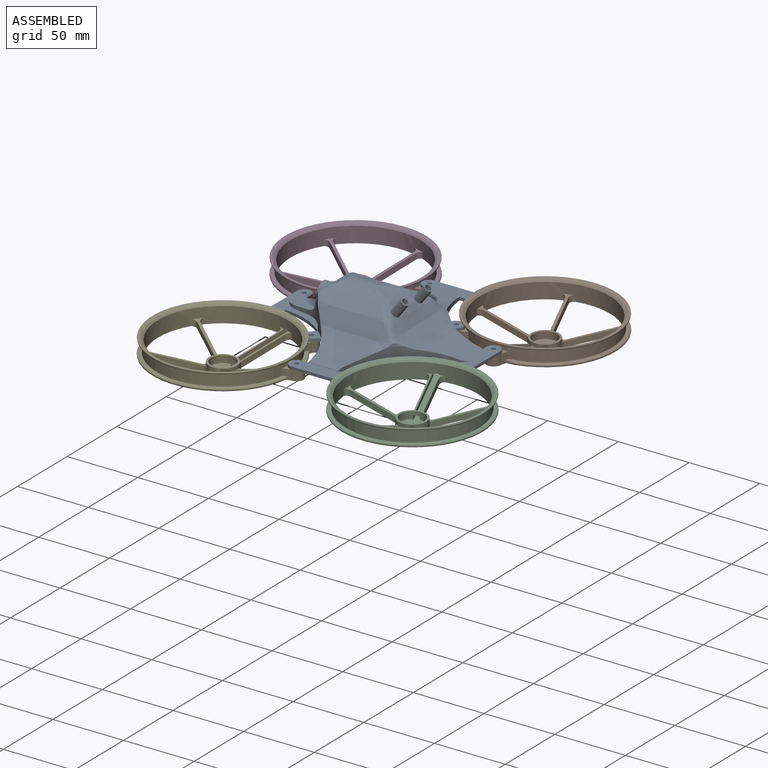
[diagram: assembled view]
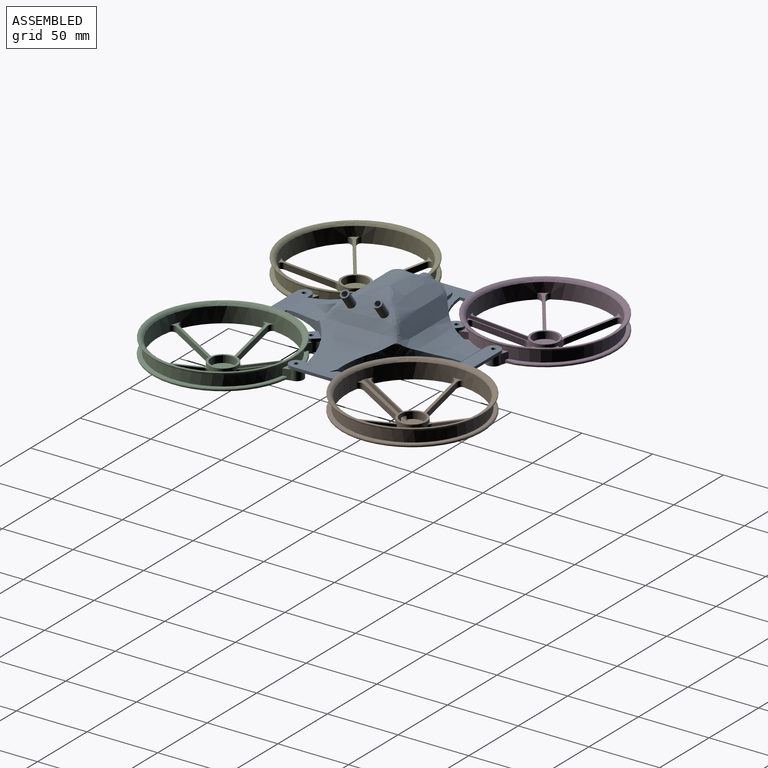
[diagram: assembled view, second angle]
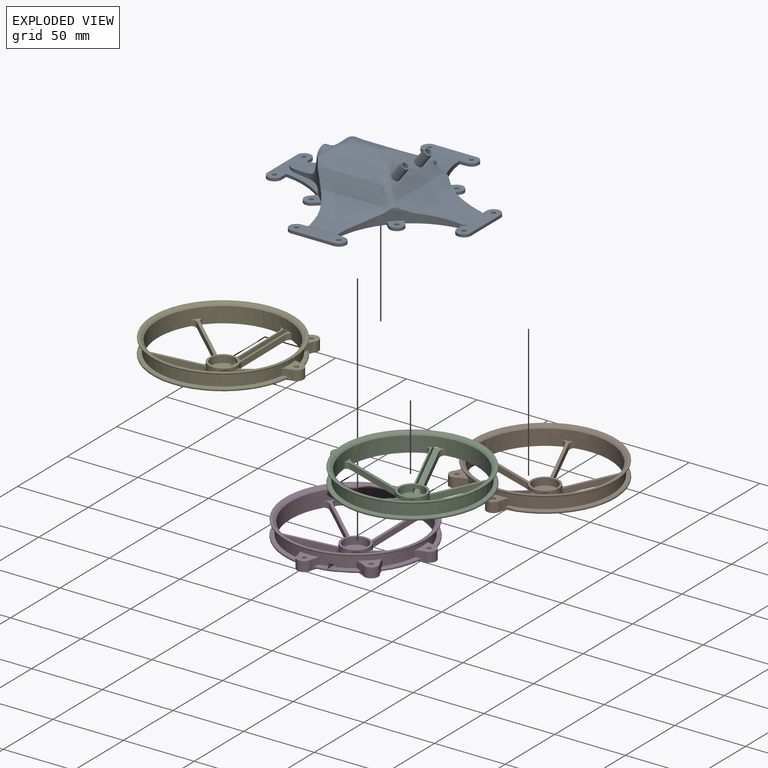
[diagram: exploded view]
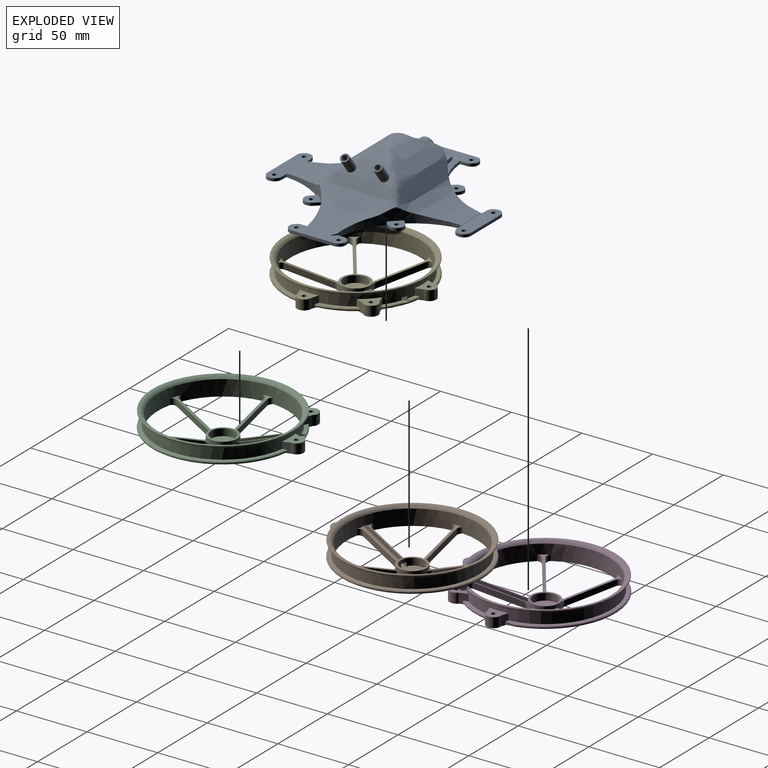
[diagram: exploded view, second angle]
ASSEMBLY  parts=5 mates=4
PART A: 174 faces, bbox 147.6x147.5x36.3 mm
  f0: extruded ~68.26x51.23mm, area 2194.1mm2, adj f1,f166,f167,f168,f169,f170,f171,f172
  f1: cylinder r=3mm len=12.88mm, axis (-0.6,0,-0.8), area 219mm2, adj f0,f2
  f2: plane 6x4.79mm, normal (0.6,0,0.8), area 15.7mm2, adj f1,f3
  f3: cylinder r=2mm len=13.5mm, axis (-0.6,0,-0.8), area 174.7mm2, adj f2,f4
  f4: plane 6x4.79mm, normal (-0.6,0,-0.8), area 15.7mm2, adj f3,f5
  f5: cylinder r=3mm len=6mm, axis (-0.6,0,-0.8), area 24.2mm2, adj f4,f6
  f6: extruded ~71.43x50.47mm, area 2151.7mm2, adj f5,f7,f155,f156,f157,f158,f159,f160
  f7: offset ~35.06x32.64mm, area 139.9mm2, adj f6,f8,f155,f161
  f8: extruded ~60.79x57.15mm, area 2480mm2, adj f7,f9,f151,f152,f153,f154,f155
  f9: extruded ~60.77x57.15mm, area 2479mm2, adj f8,f10,f148,f149,f150,f160,f161
  f10: offset ~23.32x16.29mm, area 51.4mm2, adj f9,f11,f150,f154
  f11: extruded ~41x29.18mm, area 567.9mm2, adj f10,f12,f150,f153,f154
  f12: cylinder r=6.5mm len=13mm, axis (-1,0,0), area 134.1mm2, adj f11,f13
  f13: plane 13x13mm, normal (1,0,0), area 46.1mm2, adj f12,f14
  f14: cylinder r=5.25mm len=10.5mm, axis (-1,0,0), area 263.9mm2, adj f13,f15
  f15: plane 16.55x16.55mm, normal (-1,0,0), area 46.1mm2, adj f14,f16,f147
  f16: bspline ~22.32x13.23mm, area 214.8mm2, adj f15,f17,f146
  f17: extruded ~43.68x29.94mm, area 422.9mm2, adj f16,f18,f143,f144,f145,f146
  f18: extruded ~36.43x23.16mm, area 376.1mm2, adj f17,f19,f141,f142,f143,f145
  f19: cylinder r=57mm len=38.6mm, axis (0,0,-1), area 261.9mm2, adj f18,f20,f69,f70,f139,f140,f142
  f20: plane 12.07x12.07mm, normal (0,0,1), area 82.6mm2, adj f19,f21,f28,f29,f69
  f21: cylinder r=1.5mm len=3mm, axis (0,0,-1), area 18.8mm2, adj f20,f22
  f22: plane 5x5mm, normal (0,0,-1), area 12.6mm2, adj f21,f23
  f23: cylinder r=2.5mm len=5mm, axis (0,0,-1), area 15.7mm2, adj f22,f24
  f24: plane 11.16x11.16mm, normal (0,0,-1), area 54.8mm2, adj f23,f25,f26,f27,f152
  f25: cylinder r=4mm len=6.69mm, axis (0,0,-1), area 12.2mm2, adj f24,f26,f27,f70
  f26: plane 4.47x4.06mm, normal (-0.67,0.74,0), area 6mm2, adj f24,f25,f70,f152
  f27: plane 4.47x4.06mm, normal (0.74,-0.67,0), area 6mm2, adj f24,f25,f70,f152
  f28: cylinder r=5mm len=8.36mm, axis (0,0,-1), area 30.5mm2, adj f20,f29,f69,f70
  f29: plane 3.71x3.37mm, normal (-0.74,0.67,0), area 10mm2, adj f20,f28,f30,f70
  f30: cylinder r=57mm len=31.44mm, axis (0,0,-1), area 69mm2, adj f29,f31,f70,f141
  f31: plane 5.02x2mm, normal (1,0,0), area 10mm2, adj f30,f32,f70,f141
  f32: cylinder r=5mm len=9.99mm, axis (0,0,-1), area 30.5mm2, adj f31,f33,f70,f141
  f33: plane 30.24x2mm, normal (-1,0,0), area 60.5mm2, adj f32,f34,f70,f141
  f34: cylinder r=5mm len=9.99mm, axis (0,0,-1), area 30.9mm2, adj f33,f35,f70,f141
  f35: plane 5.02x2mm, normal (1,0,0), area 10mm2, adj f34,f36,f70,f141
  f36: cylinder r=57mm len=31.44mm, axis (0,0,-1), area 69mm2, adj f35,f37,f70,f141
  f37: plane 3.71x3.37mm, normal (-0.74,-0.67,0), area 10mm2, adj f36,f38,f61,f70
  f38: cylinder r=5mm len=8.36mm, axis (0,0,-1), area 30.5mm2, adj f37,f39,f61,f70
  f39: plane 3.71x3.37mm, normal (0.67,0.74,0), area 10mm2, adj f38,f40,f61,f70
  f40: cylinder r=57mm len=38.6mm, axis (0,0,-1), area 261.9mm2, adj f39,f41,f42,f60,f61,f70,f145
  f41: extruded ~61.77x57.92mm, area 2478.4mm2, adj f40,f42,f142,f144,f145,f167,f173
  f42: plane 20.48x0.14mm, normal (0,1,0), area 2.8mm2, adj f40,f41,f43,f173
  f43: plane 40x10.24mm, normal (0,0,1), area 370.3mm2, adj f42,f44,f55,f56,f57,f58,f59,f60
  f44: cylinder r=1.5mm len=3mm, axis (0,0,-1), area 18.8mm2, adj f43,f45
  f45: plane 5x5mm, normal (0,0,-1), area 12.6mm2, adj f44,f46
  f46: cylinder r=2.5mm len=5mm, axis (0,0,-1), area 15.7mm2, adj f45,f47
  f47: plane 38x10.24mm, normal (0,0,-1), area 293.9mm2, adj f46,f48,f49,f50,f51,f52,f53,f148
  f48: cylinder r=4mm len=7.99mm, axis (0,0,-1), area 12.2mm2, adj f47,f49,f52,f70
  f49: plane 6.03x1mm, normal (0.05,1,0), area 6mm2, adj f47,f48,f70,f149
  f50: plane 6.03x1mm, normal (-0.05,1,0), area 6mm2, adj f47,f51,f70,f160
  f51: cylinder r=4mm len=8mm, axis (0,0,-1), area 12.4mm2, adj f47,f50,f52,f70
  f52: plane 30.21x1mm, normal (0,-1,0), area 30.2mm2, adj f47,f48,f51,f70
  f53: cylinder r=2.5mm len=5mm, axis (0,0,-1), area 15.7mm2, adj f47,f54
  f54: plane 5x5mm, normal (0,0,-1), area 12.6mm2, adj f53,f59
  f55: cylinder r=5mm len=9.99mm, axis (0,0,-1), area 30.9mm2, adj f43,f56,f58,f70
  f56: plane 5x2mm, normal (0.05,-1,0), area 10mm2, adj f43,f55,f70,f173
  f57: cylinder r=5mm len=9.99mm, axis (0,0,-1), area 30.5mm2, adj f43,f58,f60,f70
  f58: plane 30.24x2mm, normal (0,1,0), area 60.5mm2, adj f43,f55,f57,f70
  f59: cylinder r=1.5mm len=3mm, axis (0,0,-1), area 18.8mm2, adj f43,f54
  f60: plane 5x2mm, normal (-0.05,-1,0), area 10mm2, adj f40,f43,f57,f70
  f61: plane 12.07x12.07mm, normal (0,0,1), area 82.6mm2, adj f37,f38,f39,f40,f62
  f62: cylinder r=1.5mm len=3mm, axis (0,0,-1), area 18.8mm2, adj f61,f63
  f63: plane 5x5mm, normal (0,0,-1), area 12.6mm2, adj f62,f64
  f64: cylinder r=2.5mm len=5mm, axis (0,0,-1), area 15.7mm2, adj f63,f65
  f65: plane 11.16x11.16mm, normal (0,0,-1), area 54.8mm2, adj f64,f66,f67,f68,f149
  f66: plane 4.47x4.06mm, normal (-0.67,-0.74,0), area 6mm2, adj f65,f67,f70,f149
  f67: cylinder r=4mm len=6.69mm, axis (0,0,-1), area 12.2mm2, adj f65,f66,f68,f70
  f68: plane 4.47x4.06mm, normal (0.74,0.67,0), area 6mm2, adj f65,f67,f70,f149
  f69: plane 3.71x3.37mm, normal (0.67,-0.74,0), area 10mm2, adj f19,f20,f28,f70
  f70: plane 144x143.99mm, normal (0,0,-1), area 660.7mm2, adj f19,f25,f26,f27,f28,f29,f30,f31
  f71: cylinder r=5mm len=9.99mm, axis (0,0,-1), area 30.5mm2, adj f70,f72,f80,f139
  f72: plane 40x10.23mm, normal (0,0,1), area 370.2mm2, adj f71,f73,f79,f80,f81,f82,f139,f140
  f73: cylinder r=1.5mm len=3mm, axis (0,0,-1), area 18.8mm2, adj f72,f74
  f74: plane 5x5mm, normal (0,0,-1), area 12.6mm2, adj f73,f75
  f75: cylinder r=2.5mm len=5mm, axis (0,0,-1), area 15.7mm2, adj f74,f76
  f76: plane 38x10.23mm, normal (0,0,-1), area 293.8mm2, adj f75,f77,f134,f135,f136,f137,f138,f151
  f77: cylinder r=2.5mm len=5mm, axis (0,0,-1), area 15.7mm2, adj f76,f78
  f78: plane 5x5mm, normal (0,0,-1), area 12.6mm2, adj f77,f79
  f79: cylinder r=1.5mm len=3mm, axis (0,0,-1), area 18.8mm2, adj f72,f78
  f80: plane 30.48x2mm, normal (0,-1,0), area 61mm2, adj f70,f71,f72,f81
  f81: cylinder r=5mm len=9.99mm, axis (0,0,-1), area 30.5mm2, adj f70,f72,f80,f82
  f82: plane 5x2mm, normal (0.05,1,0), area 10mm2, adj f70,f72,f81,f169
  f83: plane 3.71x3.37mm, normal (-0.67,-0.74,0), area 10mm2, adj f70,f84,f89,f169
  f84: plane 12.07x12.07mm, normal (0,0,1), area 82.6mm2, adj f83,f85,f89,f90,f169
  f85: cylinder r=1.5mm len=3mm, axis (0,0,-1), area 18.8mm2, adj f84,f86
  f86: plane 5x5mm, normal (0,0,-1), area 12.6mm2, adj f85,f87
  f87: cylinder r=2.5mm len=5mm, axis (0,0,-1), area 15.7mm2, adj f86,f88
  f88: plane 11.16x11.16mm, normal (0,0,-1), area 54.8mm2, adj f87,f131,f132,f133,f155
  f89: cylinder r=5mm len=8.36mm, axis (0,0,-1), area 30.5mm2, adj f70,f83,f84,f90
  f90: plane 3.71x3.37mm, normal (0.74,0.67,0), area 10mm2, adj f70,f84,f89,f169
  f91: plane 5.02x2mm, normal (-1,0,0), area 10mm2, adj f70,f92,f99,f169
  f92: plane 40x9.99mm, normal (0,0,1), area 288.3mm2, adj f91,f93,f96,f99,f100,f101,f102,f170
  f93: cylinder r=1.5mm len=3mm, axis (0,0,-1), area 18.8mm2, adj f92,f94
  f94: plane 5x5mm, normal (0,0,-1), area 12.6mm2, adj f93,f95
  f95: cylinder r=2.5mm len=5mm, axis (0,0,-1), area 15.7mm2, adj f94,f158
  f96: cylinder r=1.5mm len=3mm, axis (0,0,-1), area 18.8mm2, adj f92,f97
  f97: plane 5x5mm, normal (0,0,-1), area 12.6mm2, adj f96,f98
  f98: cylinder r=2.5mm len=5mm, axis (0,0,-1), area 15.7mm2, adj f97,f158
  f99: cylinder r=5mm len=9.99mm, axis (0,0,-1), area 30.5mm2, adj f70,f91,f92,f100
  f100: plane 30.24x2mm, normal (1,0,0), area 60.5mm2, adj f70,f92,f99,f101
  f101: cylinder r=5mm len=9.99mm, axis (0,0,-1), area 30.9mm2, adj f70,f92,f100,f102
  f102: plane 5.02x2mm, normal (-1,0,0), area 10mm2, adj f70,f92,f101,f173
  f103: plane 3.71x3.37mm, normal (0.74,-0.67,0), area 10mm2, adj f70,f104,f109,f173
  f104: plane 12.07x12.07mm, normal (0,0,1), area 82.6mm2, adj f103,f105,f109,f110,f173
  f105: cylinder r=1.5mm len=3mm, axis (0,0,-1), area 18.8mm2, adj f104,f106
  f106: plane 5x5mm, normal (0,0,-1), area 12.6mm2, adj f105,f107
  f107: cylinder r=2.5mm len=5mm, axis (0,0,-1), area 15.7mm2, adj f106,f108
  f108: plane 11.16x11.16mm, normal (0,0,-1), area 54.8mm2, adj f107,f123,f124,f125,f160
  f109: cylinder r=5mm len=8.36mm, axis (0,0,-1), area 30.5mm2, adj f70,f103,f104,f110
  f110: plane 3.71x3.37mm, normal (-0.67,0.74,0), area 10mm2, adj f70,f104,f109,f173
  f111: plane 6.08x1mm, normal (-1,0,0), area 6.1mm2, adj f70,f112,f119,f152
  f112: plane 45x41.2mm, normal (0,0,-1), area 528.8mm2, adj f111,f113,f116,f119,f120,f121,f122,f149
  f113: cylinder r=2.5mm len=5mm, axis (0,0,-1), area 15.7mm2, adj f112,f114
  f114: plane 5x5mm, normal (0,0,-1), area 12.6mm2, adj f113,f115
  f115: cylinder r=1.5mm len=3mm, axis (0,0,-1), area 18.8mm2, adj f114,f141
  f116: cylinder r=2.5mm len=5mm, axis (0,0,-1), area 15.7mm2, adj f112,f117
  f117: plane 5x5mm, normal (0,0,-1), area 12.6mm2, adj f116,f118
  f118: cylinder r=1.5mm len=3mm, axis (0,0,-1), area 18.8mm2, adj f117,f141
  f119: cylinder r=4mm len=7.99mm, axis (0,0,-1), area 12.1mm2, adj f70,f111,f112,f120
  f120: plane 30.21x1mm, normal (1,0,0), area 30.2mm2, adj f70,f112,f119,f121
  f121: cylinder r=4mm len=7.99mm, axis (0,0,-1), area 12.4mm2, adj f70,f112,f120,f122
  f122: plane 6.08x1mm, normal (-1,0,0), area 6.1mm2, adj f70,f112,f121,f149
  f123: plane 4.47x4.06mm, normal (0.67,-0.74,0), area 6mm2, adj f70,f108,f124,f160
  f124: cylinder r=4mm len=6.69mm, axis (0,0,-1), area 12.2mm2, adj f70,f108,f123,f125
  f125: plane 4.47x4.06mm, normal (-0.74,0.67,0), area 6mm2, adj f70,f108,f124,f160
  f126: plane 6.08x1mm, normal (1,0,0), area 6.1mm2, adj f70,f127,f158,f160
  f127: cylinder r=4mm len=7.99mm, axis (0,0,-1), area 12.4mm2, adj f70,f126,f128,f158
  f128: plane 30.21x1mm, normal (-1,0,0), area 30.2mm2, adj f70,f127,f129,f158
  f129: cylinder r=4mm len=7.99mm, axis (0,0,-1), area 12.1mm2, adj f70,f128,f130,f158
  f130: plane 6.08x1mm, normal (1,0,0), area 6.1mm2, adj f70,f129,f155,f158
  f131: plane 4.47x4.06mm, normal (-0.74,-0.67,0), area 6mm2, adj f70,f88,f132,f155
  f132: cylinder r=4mm len=6.69mm, axis (0,0,-1), area 12.2mm2, adj f70,f88,f131,f133
  f133: plane 4.47x4.06mm, normal (0.67,0.74,0), area 6mm2, adj f70,f88,f132,f155
  f134: plane 6.03x1mm, normal (-0.05,-1,0), area 6mm2, adj f70,f76,f135,f155
  f135: cylinder r=4mm len=7.99mm, axis (0,0,-1), area 12.2mm2, adj f70,f76,f134,f136
  f136: plane 30.43x1mm, normal (0,1,0), area 30.4mm2, adj f70,f76,f135,f137
  f137: cylinder r=4mm len=7.99mm, axis (0,0,-1), area 12.2mm2, adj f70,f76,f136,f138
  f138: plane 6.03x1mm, normal (0.05,-1,0), area 6mm2, adj f70,f76,f137,f152
  f139: plane 5x2mm, normal (-0.05,1,0), area 10mm2, adj f19,f70,f71,f72
  f140: plane 20.48x0.14mm, normal (0,-1,0), area 2.8mm2, adj f19,f72,f142,f169
  f141: plane 46.33x41.43mm, normal (0,0,1), area 604.1mm2, adj f18,f30,f31,f32,f33,f34,f35,f36
  f142: extruded ~61.77x57.92mm, area 2478.4mm2, adj f18,f19,f41,f140,f143,f168,f169
  f143: bspline ~21.32x14.29mm, area 69.4mm2, adj f17,f18,f142,f144
  f144: bspline ~21.32x14.29mm, area 69.4mm2, adj f17,f41,f143,f145
  f145: extruded ~36.43x23.16mm, area 376.1mm2, adj f17,f18,f40,f41,f141,f144
  f146: bspline ~21.16x8.63mm, area 99.5mm2, adj f16,f17,f147
  f147: cylinder r=6.5mm len=11.43mm, axis (-1,0,0), area 0mm2, adj f15,f146
  f148: plane 18.67x0.29mm, normal (0,-1,0), area 5.4mm2, adj f9,f47,f149,f160
  f149: cylinder r=58mm len=53.85mm, axis (0,0,-1), area 273.5mm2, adj f9,f47,f49,f65,f66,f68,f70,f112
  f150: extruded ~35.94x22.49mm, area 382.9mm2, adj f9,f10,f11,f112,f149,f153
  f151: plane 18.67x0.29mm, normal (0,1,0), area 5.4mm2, adj f8,f76,f152,f155
  f152: cylinder r=58mm len=53.85mm, axis (0,0,-1), area 273.6mm2, adj f8,f24,f26,f27,f70,f76,f111,f112
  f153: extruded ~35.94x22.49mm, area 382.9mm2, adj f8,f11,f112,f150,f152,f154
  f154: offset ~23.32x16.29mm, area 51.5mm2, adj f8,f10,f11,f153
  f155: cylinder r=58mm len=53.85mm, axis (0,0,-1), area 356.6mm2, adj f6,f7,f8,f70,f76,f88,f130,f131
  f156: cylinder r=11.51mm len=4.16mm, axis (0,0,-1), area 2.6mm2, adj f6,f155,f158
  f157: cylinder r=13.51mm len=17.43mm, axis (0,0,-1), area 0mm2, adj f6,f158
  f158: plane 38x9.36mm, normal (0,0,-1), area 185.7mm2, adj f6,f95,f98,f126,f127,f128,f129,f130
  f159: cylinder r=11.51mm len=4.16mm, axis (0,0,-1), area 2.6mm2, adj f6,f158,f160
  f160: cylinder r=58mm len=53.85mm, axis (0,0,-1), area 356.6mm2, adj f6,f9,f47,f50,f70,f108,f123,f125
  f161: offset ~35.06x32.64mm, area 139.4mm2, adj f6,f7,f9,f160
  f162: cylinder r=3mm len=6mm, axis (-0.6,0,-0.8), area 24.2mm2, adj f6,f163
  f163: plane 6x4.79mm, normal (-0.6,0,-0.8), area 15.7mm2, adj f162,f164
  f164: cylinder r=2mm len=13.5mm, axis (-0.6,0,-0.8), area 174.7mm2, adj f163,f165
  f165: plane 6x4.79mm, normal (0.6,0,0.8), area 15.7mm2, adj f164,f166
  f166: cylinder r=3mm len=12.88mm, axis (-0.6,0,-0.8), area 219mm2, adj f0,f165
  f167: bspline ~33.06x30.64mm, area 182mm2, adj f0,f41,f168,f173
  f168: bspline ~33.06x30.64mm, area 181.9mm2, adj f0,f142,f167,f169
  f169: cylinder r=57mm len=51.77mm, axis (0,0,-1), area 408.2mm2, adj f0,f70,f82,f83,f84,f90,f91,f140
  f170: cylinder r=12.51mm len=3.4mm, axis (0,0,-1), area 2.1mm2, adj f0,f92,f169
  f171: cylinder r=12.51mm len=13.64mm, axis (0,0,-1), area 0mm2, adj f0,f92
  f172: cylinder r=12.51mm len=3.4mm, axis (0,0,-1), area 2.1mm2, adj f0,f92,f173
  f173: cylinder r=57mm len=51.77mm, axis (0,0,-1), area 408.2mm2, adj f0,f41,f42,f56,f70,f102,f103,f104
PART B: 81 faces, bbox 114x114x23.9 mm
  f0: plane 23.72x10.49mm, normal (0,0,1), area 48.5mm2, adj f1,f26,f51,f56
  f1: torus R=49mm, axis (0,0,-1), area 84.7mm2, adj f0,f2,f51,f56
  f2: plane 23.72x10.49mm, normal (0,0,-1), area 48.5mm2, adj f1,f16,f51,f56
  f3: plane 23.72x10.49mm, normal (0,0,1), area 48.5mm2, adj f4,f26,f45,f50
  f4: torus R=49mm, axis (0,0,-1), area 80.2mm2, adj f3,f5,f27,f39,f40,f42,f45,f50
  f5: plane 13.32x7.81mm, normal (0,0,-1), area 27.1mm2, adj f4,f16,f42,f50
  f6: plane 97.63x97.63mm, normal (0,0,1), area 426.9mm2, adj f7,f26,f44,f57
  f7: torus R=49mm, axis (0,0,-1), area 698.3mm2, adj f6,f8,f44,f57
  f8: plane 97.63x97.63mm, normal (0,0,-1), area 426.9mm2, adj f7,f16,f44,f57
  f9: cone r=10mm half-angle=75.3deg, axis (0,0,-1), area 40.8mm2, adj f20,f21,f28,f40,f77,f80
  f10: cone r=10mm half-angle=75.3deg, axis (0,0,-1), area 99.6mm2, adj f20,f21,f35,f36,f70,f73,f74,f75
  f11: cone r=10mm half-angle=75.3deg, axis (0,0,-1), area 89.4mm2, adj f20,f21,f29,f34,f76,f78,f79
  f12: cone r=10mm half-angle=75.3deg, axis (0,0,-1), area 99.6mm2, adj f20,f21,f33,f37,f66,f67,f71,f72
  f13: cone r=10mm half-angle=75.3deg, axis (0,0,-1), area 99.6mm2, adj f20,f21,f30,f32,f62,f65,f68,f69
  f14: cone r=10mm half-angle=75.3deg, axis (0,0,-1), area 40.8mm2, adj f20,f21,f31,f42,f63,f64
  f15: cone r=8.5mm half-angle=75.3deg, axis (0,0,-1), area 1011.1mm2, adj f20,f21,f25,f26,f28,f29,f30,f31
  f16: cylinder r=47mm len=94mm, axis (0,0,-1), area 2128.5mm2, adj f2,f5,f8,f17,f27,f38,f40,f42
  f17: cone r=47mm half-angle=69deg, axis (0,0,-1), area 761.8mm2, adj f16,f18
  f18: torus R=49.04mm, axis (0,0,-1), area 492.3mm2, adj f17,f19
  f19: torus R=49.26mm, axis (0,0,-1), area 1337.6mm2, adj f18,f20
  f20: cylinder r=46mm len=92mm, axis (0,0,-1), area 3022.4mm2, adj f9,f10,f11,f12,f13,f14,f15,f19
  f21: cylinder r=10mm len=20mm, axis (0,0,-1), area 279.6mm2, adj f9,f10,f11,f12,f13,f14,f15,f22
  f22: plane 20x20mm, normal (0,0,-1), area 87.2mm2, adj f21,f23
  f23: cylinder r=8.5mm len=17mm, axis (0,0,-1), area 257.4mm2, adj f22,f24,f40,f42,f43
  f24: plane 17x17mm, normal (0,0,-1), area 219.6mm2, adj f23,f40,f41,f42
  f25: plane 17x17mm, normal (0,0,1), area 227mm2, adj f15
  f26: cylinder r=47mm len=94mm, axis (0,0,-1), area 186.4mm2, adj f0,f3,f6,f15,f44,f45,f49,f50
  f27: plane 7.22x3.35mm, normal (0,0,-1), area 13.4mm2, adj f4,f16,f40,f45
  f28: plane 29.53x12.23mm, normal (0.95,0.31,0), area 128.4mm2, adj f9,f15,f77,f80
  f29: plane 25.5x18.77mm, normal (-0.59,0.81,0), area 125.9mm2, adj f11,f15,f78,f79
  f30: plane 31.32x13.01mm, normal (0,1,0), area 125.9mm2, adj f13,f15,f62,f65
  f31: plane 29.53x12.23mm, normal (-0.95,-0.31,0), area 128.4mm2, adj f14,f15,f63,f64
  f32: plane 31.32x13.01mm, normal (0,-1,0), area 125.9mm2, adj f13,f15,f68,f69
  f33: plane 29.83x13.01mm, normal (-0.95,0.31,0), area 125.9mm2, adj f12,f15,f66,f67
  f34: plane 26.59x19.32mm, normal (0.59,-0.81,0), area 135.9mm2, adj f11,f15,f21,f76
  f35: plane 25.5x18.77mm, normal (0.59,0.81,0), area 125.9mm2, adj f10,f15,f74,f75
  f36: plane 25.5x18.77mm, normal (-0.59,-0.81,0), area 125.9mm2, adj f10,f15,f70,f73
  f37: plane 29.83x13.01mm, normal (0.95,-0.31,0), area 125.9mm2, adj f12,f15,f71,f72
  f38: plane 4.14x2.21mm, normal (-0.08,0.24,0.97), area 4.1mm2, adj f16,f20,f40,f42
  f39: plane 42.07x17.11mm, normal (0.08,-0.24,-0.97), area 177.9mm2, adj f4,f40,f41,f42
  f40: plane 41.23x13.67mm, normal (-0.95,-0.31,0), area 113.7mm2, adj f4,f9,f16,f20,f21,f23,f24,f27
  f41: plane 3.93x1.38mm, normal (-0.27,0.93,-0.25), area 4.5mm2, adj f24,f39,f40,f42
  f42: plane 41.1x13.64mm, normal (0.95,0.31,0), area 113.5mm2, adj f4,f5,f14,f16,f20,f21,f23,f24
  f43: plane 4.4x2.82mm, normal (-0.08,0.24,0.97), area 6.3mm2, adj f21,f23,f40,f42
  f44: plane 7x5.24mm, normal (0.95,0.31,0), area 32.4mm2, adj f6,f7,f8,f16,f26,f46,f48,f49
  f45: plane 7x5.24mm, normal (-0.95,0.31,0), area 32.4mm2, adj f3,f4,f16,f26,f27,f46,f48,f49
  f46: cylinder r=5mm len=10mm, axis (0,0,1), area 113.3mm2, adj f44,f45,f48,f49
  f47: cylinder r=1.5mm len=7mm, axis (0,0,1), area 66mm2, adj f48,f49
  f48: plane 13.39x10.48mm, normal (0,0,-1), area 91.6mm2, adj f16,f44,f45,f46,f47
  f49: plane 13.39x10.48mm, normal (0,0,1), area 91.6mm2, adj f26,f44,f45,f46,f47
  f50: plane 7x5.6mm, normal (0.33,0.94,0), area 34.9mm2, adj f3,f4,f5,f16,f26,f52,f54,f55
  f51: plane 7x5.6mm, normal (-0.94,-0.33,0), area 34.9mm2, adj f0,f1,f2,f16,f26,f52,f54,f55
  f52: cylinder r=5mm len=8.7mm, axis (0,0,1), area 113.3mm2, adj f50,f51,f54,f55
  f53: cylinder r=1.5mm len=7mm, axis (0,0,1), area 66mm2, adj f54,f55
  f54: plane 14.3x14.3mm, normal (0,0,-1), area 95.8mm2, adj f16,f50,f51,f52,f53
  f55: plane 14.3x14.3mm, normal (0,0,1), area 95.8mm2, adj f26,f50,f51,f52,f53
  f56: plane 7x5.24mm, normal (-0.31,0.95,0), area 32.4mm2, adj f0,f1,f2,f16,f26,f58,f60,f61
  f57: plane 7x5.24mm, normal (-0.31,-0.95,0), area 32.4mm2, adj f6,f7,f8,f16,f26,f58,f60,f61
  f58: cylinder r=5mm len=10mm, axis (0,0,1), area 113.3mm2, adj f56,f57,f60,f61
  f59: cylinder r=1.5mm len=7mm, axis (0,0,1), area 66mm2, adj f60,f61
  f60: plane 13.39x10.48mm, normal (0,0,-1), area 91.6mm2, adj f16,f56,f57,f58,f59
  f61: plane 13.39x10.48mm, normal (0,0,1), area 91.6mm2, adj f26,f56,f57,f58,f59
  f62: cylinder r=3mm len=4.97mm, axis (0,0,-1), area 20.6mm2, adj f13,f15,f20,f30
  f63: cylinder r=3mm len=5.01mm, axis (0,0,-1), area 21.2mm2, adj f14,f15,f20,f31
  f64: cylinder r=3mm len=4.64mm, axis (0,0,-1), area 13.5mm2, adj f14,f15,f21,f31
  f65: cylinder r=3mm len=4.77mm, axis (0,0,-1), area 15.6mm2, adj f13,f15,f21,f30
  f66: cylinder r=3mm len=4.77mm, axis (0,0,-1), area 15.6mm2, adj f12,f15,f21,f33
  f67: cylinder r=3mm len=4.97mm, axis (0,0,-1), area 20.6mm2, adj f12,f15,f20,f33
  f68: cylinder r=3mm len=4.97mm, axis (0,0,-1), area 20.6mm2, adj f13,f15,f20,f32
  f69: cylinder r=3mm len=4.77mm, axis (0,0,-1), area 15.6mm2, adj f13,f15,f21,f32
  f70: cylinder r=3mm len=4.97mm, axis (0,0,-1), area 20.6mm2, adj f10,f15,f20,f36
  f71: cylinder r=3mm len=4.97mm, axis (0,0,-1), area 20.6mm2, adj f12,f15,f20,f37
  f72: cylinder r=3mm len=4.77mm, axis (0,0,-1), area 15.6mm2, adj f12,f15,f21,f37
  f73: cylinder r=3mm len=4.77mm, axis (0,0,-1), area 15.6mm2, adj f10,f15,f21,f36
  f74: cylinder r=3mm len=4.77mm, axis (0,0,-1), area 15.6mm2, adj f10,f15,f21,f35
  f75: cylinder r=3mm len=4.97mm, axis (0,0,-1), area 20.6mm2, adj f10,f15,f20,f35
  f76: cylinder r=3mm len=4.97mm, axis (0,0,-1), area 20.6mm2, adj f11,f15,f20,f34
  f77: cylinder r=3mm len=5.01mm, axis (0,0,-1), area 21.2mm2, adj f9,f15,f20,f28
  f78: cylinder r=3mm len=4.97mm, axis (0,0,-1), area 20.6mm2, adj f11,f15,f20,f29
  f79: cylinder r=3mm len=4.77mm, axis (0,0,-1), area 15.6mm2, adj f11,f15,f21,f29
  f80: cylinder r=3mm len=4.64mm, axis (0,0,-1), area 13.5mm2, adj f9,f15,f21,f28
PART C: 81 faces, bbox 114x114x23.9 mm
  f0: plane 23.72x10.49mm, normal (0,0,1), area 48.5mm2, adj f1,f26,f51,f56
  f1: torus R=49mm, axis (0,0,-1), area 84.7mm2, adj f0,f2,f51,f56
  f2: plane 23.72x10.49mm, normal (0,0,-1), area 48.5mm2, adj f1,f16,f51,f56
  f3: plane 23.72x10.49mm, normal (0,0,1), area 48.5mm2, adj f4,f26,f45,f50
  f4: torus R=49mm, axis (0,0,-1), area 80.2mm2, adj f3,f5,f27,f39,f40,f42,f45,f50
  f5: plane 13.32x7.81mm, normal (0,0,-1), area 27.1mm2, adj f4,f16,f42,f50
  f6: plane 97.63x97.63mm, normal (0,0,1), area 426.9mm2, adj f7,f26,f44,f57
  f7: torus R=49mm, axis (0,0,-1), area 698.3mm2, adj f6,f8,f44,f57
  f8: plane 97.63x97.63mm, normal (0,0,-1), area 426.9mm2, adj f7,f16,f44,f57
  f9: cone r=10mm half-angle=75.3deg, axis (0,0,-1), area 40.8mm2, adj f20,f21,f28,f40,f77,f80
  f10: cone r=10mm half-angle=75.3deg, axis (0,0,-1), area 99.6mm2, adj f20,f21,f35,f36,f70,f73,f74,f75
  f11: cone r=10mm half-angle=75.3deg, axis (0,0,-1), area 89.4mm2, adj f20,f21,f29,f34,f76,f78,f79
  f12: cone r=10mm half-angle=75.3deg, axis (0,0,-1), area 99.6mm2, adj f20,f21,f33,f37,f66,f67,f71,f72
  f13: cone r=10mm half-angle=75.3deg, axis (0,0,-1), area 99.6mm2, adj f20,f21,f30,f32,f62,f65,f68,f69
  f14: cone r=10mm half-angle=75.3deg, axis (0,0,-1), area 40.8mm2, adj f20,f21,f31,f42,f63,f64
  f15: cone r=8.5mm half-angle=75.3deg, axis (0,0,-1), area 1011.1mm2, adj f20,f21,f25,f26,f28,f29,f30,f31
  f16: cylinder r=47mm len=94mm, axis (0,0,-1), area 2128.5mm2, adj f2,f5,f8,f17,f27,f38,f40,f42
  f17: cone r=47mm half-angle=69deg, axis (0,0,-1), area 761.8mm2, adj f16,f18
  f18: torus R=49.04mm, axis (0,0,-1), area 492.3mm2, adj f17,f19
  f19: torus R=49.26mm, axis (0,0,-1), area 1337.6mm2, adj f18,f20
  f20: cylinder r=46mm len=92mm, axis (0,0,-1), area 3022.4mm2, adj f9,f10,f11,f12,f13,f14,f15,f19
  f21: cylinder r=10mm len=20mm, axis (0,0,-1), area 279.6mm2, adj f9,f10,f11,f12,f13,f14,f15,f22
  f22: plane 20x20mm, normal (0,0,-1), area 87.2mm2, adj f21,f23
  f23: cylinder r=8.5mm len=17mm, axis (0,0,-1), area 257.4mm2, adj f22,f24,f40,f42,f43
  f24: plane 17x17mm, normal (0,0,-1), area 219.6mm2, adj f23,f40,f41,f42
  f25: plane 17x17mm, normal (0,0,1), area 227mm2, adj f15
  f26: cylinder r=47mm len=94mm, axis (0,0,-1), area 186.4mm2, adj f0,f3,f6,f15,f44,f45,f49,f50
  f27: plane 7.22x3.35mm, normal (0,0,-1), area 13.4mm2, adj f4,f16,f40,f45
  f28: plane 29.53x12.23mm, normal (-0.95,0.31,0), area 128.4mm2, adj f9,f15,f77,f80
  f29: plane 25.5x18.77mm, normal (0.59,0.81,0), area 125.9mm2, adj f11,f15,f78,f79
  f30: plane 31.32x13.01mm, normal (0,1,0), area 125.9mm2, adj f13,f15,f62,f65
  f31: plane 29.53x12.23mm, normal (0.95,-0.31,0), area 128.4mm2, adj f14,f15,f63,f64
  f32: plane 31.32x13.01mm, normal (0,-1,0), area 125.9mm2, adj f13,f15,f68,f69
  f33: plane 29.83x13.01mm, normal (0.95,0.31,0), area 125.9mm2, adj f12,f15,f66,f67
  f34: plane 26.59x19.32mm, normal (-0.59,-0.81,0), area 135.9mm2, adj f11,f15,f21,f76
  f35: plane 25.5x18.77mm, normal (-0.59,0.81,0), area 125.9mm2, adj f10,f15,f74,f75
  f36: plane 25.5x18.77mm, normal (0.59,-0.81,0), area 125.9mm2, adj f10,f15,f70,f73
  f37: plane 29.83x13.01mm, normal (-0.95,-0.31,0), area 125.9mm2, adj f12,f15,f71,f72
  f38: plane 4.14x2.21mm, normal (0.08,0.24,0.97), area 4.1mm2, adj f16,f20,f40,f42
  f39: plane 42.07x17.11mm, normal (-0.08,-0.24,-0.97), area 177.9mm2, adj f4,f40,f41,f42
  f40: plane 41.23x13.67mm, normal (0.95,-0.31,0), area 113.7mm2, adj f4,f9,f16,f20,f21,f23,f24,f27
  f41: plane 3.93x1.38mm, normal (0.27,0.93,-0.25), area 4.5mm2, adj f24,f39,f40,f42
  f42: plane 41.1x13.64mm, normal (-0.95,0.31,0), area 113.5mm2, adj f4,f5,f14,f16,f20,f21,f23,f24
  f43: plane 4.4x2.82mm, normal (0.08,0.24,0.97), area 6.3mm2, adj f21,f23,f40,f42
  f44: plane 7x5.24mm, normal (-0.95,0.31,0), area 32.4mm2, adj f6,f7,f8,f16,f26,f46,f48,f49
  f45: plane 7x5.24mm, normal (0.95,0.31,0), area 32.4mm2, adj f3,f4,f16,f26,f27,f46,f48,f49
  f46: cylinder r=5mm len=10mm, axis (0,0,1), area 113.3mm2, adj f44,f45,f48,f49
  f47: cylinder r=1.5mm len=7mm, axis (0,0,1), area 66mm2, adj f48,f49
  f48: plane 13.39x10.48mm, normal (0,0,-1), area 91.6mm2, adj f16,f44,f45,f46,f47
  f49: plane 13.39x10.48mm, normal (0,0,1), area 91.6mm2, adj f26,f44,f45,f46,f47
  f50: plane 7x5.6mm, normal (-0.33,0.94,0), area 34.9mm2, adj f3,f4,f5,f16,f26,f52,f54,f55
  f51: plane 7x5.6mm, normal (0.94,-0.33,0), area 34.9mm2, adj f0,f1,f2,f16,f26,f52,f54,f55
  f52: cylinder r=5mm len=8.7mm, axis (0,0,1), area 113.3mm2, adj f50,f51,f54,f55
  f53: cylinder r=1.5mm len=7mm, axis (0,0,1), area 66mm2, adj f54,f55
  f54: plane 14.3x14.3mm, normal (0,0,-1), area 95.8mm2, adj f16,f50,f51,f52,f53
  f55: plane 14.3x14.3mm, normal (0,0,1), area 95.8mm2, adj f26,f50,f51,f52,f53
  f56: plane 7x5.24mm, normal (0.31,0.95,0), area 32.4mm2, adj f0,f1,f2,f16,f26,f58,f60,f61
  f57: plane 7x5.24mm, normal (0.31,-0.95,0), area 32.4mm2, adj f6,f7,f8,f16,f26,f58,f60,f61
  f58: cylinder r=5mm len=10mm, axis (0,0,1), area 113.3mm2, adj f56,f57,f60,f61
  f59: cylinder r=1.5mm len=7mm, axis (0,0,1), area 66mm2, adj f60,f61
  f60: plane 13.39x10.48mm, normal (0,0,-1), area 91.6mm2, adj f16,f56,f57,f58,f59
  f61: plane 13.39x10.48mm, normal (0,0,1), area 91.6mm2, adj f26,f56,f57,f58,f59
  f62: cylinder r=3mm len=4.97mm, axis (0,0,-1), area 20.6mm2, adj f13,f15,f20,f30
  f63: cylinder r=3mm len=5.01mm, axis (0,0,-1), area 21.2mm2, adj f14,f15,f20,f31
  f64: cylinder r=3mm len=4.64mm, axis (0,0,-1), area 13.5mm2, adj f14,f15,f21,f31
  f65: cylinder r=3mm len=4.77mm, axis (0,0,-1), area 15.6mm2, adj f13,f15,f21,f30
  f66: cylinder r=3mm len=4.77mm, axis (0,0,-1), area 15.6mm2, adj f12,f15,f21,f33
  f67: cylinder r=3mm len=4.97mm, axis (0,0,-1), area 20.6mm2, adj f12,f15,f20,f33
  f68: cylinder r=3mm len=4.97mm, axis (0,0,-1), area 20.6mm2, adj f13,f15,f20,f32
  f69: cylinder r=3mm len=4.77mm, axis (0,0,-1), area 15.6mm2, adj f13,f15,f21,f32
  f70: cylinder r=3mm len=4.97mm, axis (0,0,-1), area 20.6mm2, adj f10,f15,f20,f36
  f71: cylinder r=3mm len=4.97mm, axis (0,0,-1), area 20.6mm2, adj f12,f15,f20,f37
  f72: cylinder r=3mm len=4.77mm, axis (0,0,-1), area 15.6mm2, adj f12,f15,f21,f37
  f73: cylinder r=3mm len=4.77mm, axis (0,0,-1), area 15.6mm2, adj f10,f15,f21,f36
  f74: cylinder r=3mm len=4.77mm, axis (0,0,-1), area 15.6mm2, adj f10,f15,f21,f35
  f75: cylinder r=3mm len=4.97mm, axis (0,0,-1), area 20.6mm2, adj f10,f15,f20,f35
  f76: cylinder r=3mm len=4.97mm, axis (0,0,-1), area 20.6mm2, adj f11,f15,f20,f34
  f77: cylinder r=3mm len=5.01mm, axis (0,0,-1), area 21.2mm2, adj f9,f15,f20,f28
  f78: cylinder r=3mm len=4.97mm, axis (0,0,-1), area 20.6mm2, adj f11,f15,f20,f29
  f79: cylinder r=3mm len=4.77mm, axis (0,0,-1), area 15.6mm2, adj f11,f15,f21,f29
  f80: cylinder r=3mm len=4.64mm, axis (0,0,-1), area 13.5mm2, adj f9,f15,f21,f28
PART D: same geometry as C
PART E: same geometry as B
PLACE A t=(236.71,110.75,-53.43)mm fixed
PLACE B rot(axis=(1,0,0),180deg) t=(236.71,110.75,-56.93)mm
PLACE C rot(axis=(0,1,0),180deg) t=(236.71,110.75,-56.93)mm
PLACE D rot(axis=(1,0,0),180deg) t=(236.71,110.75,-56.93)mm
PLACE E rot(axis=(0,1,0),180deg) t=(236.71,110.75,-56.93)mm
MATE fastened A.f85 <-> C.f52  axis (0,0,-1) through (266.94,80.52,-53.43)mm
MATE fastened A.f105 <-> B.f52  axis (0,0,-1) through (266.94,140.99,-53.43)mm
MATE fastened E.f52 <-> A.f21  axis (0,0,1) through (206.48,80.52,-53.43)mm
MATE fastened D.f52 <-> A.f38  axis (0,0,1) through (206.48,140.99,-53.43)mm
